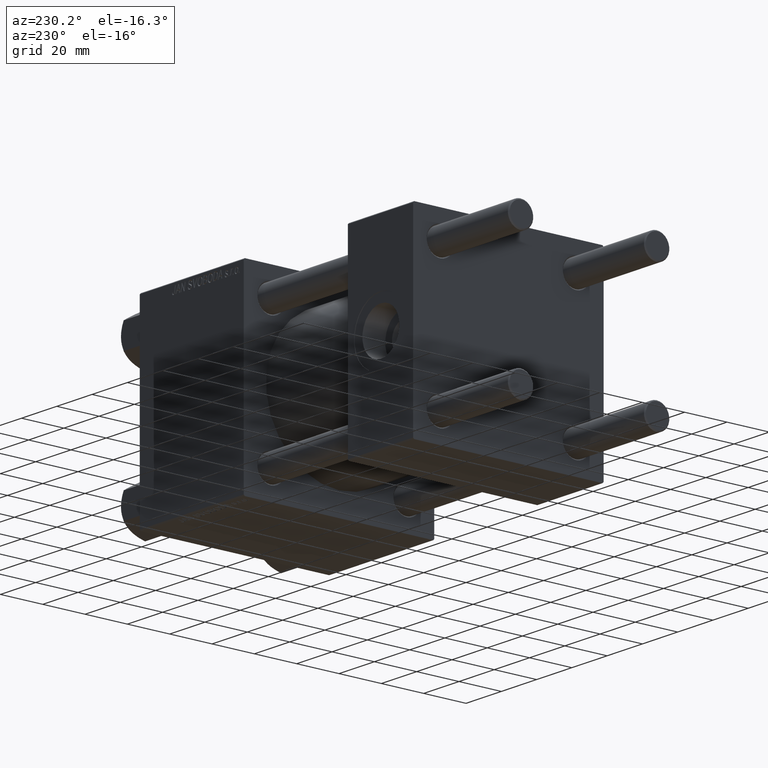
[diagram: clean part render]
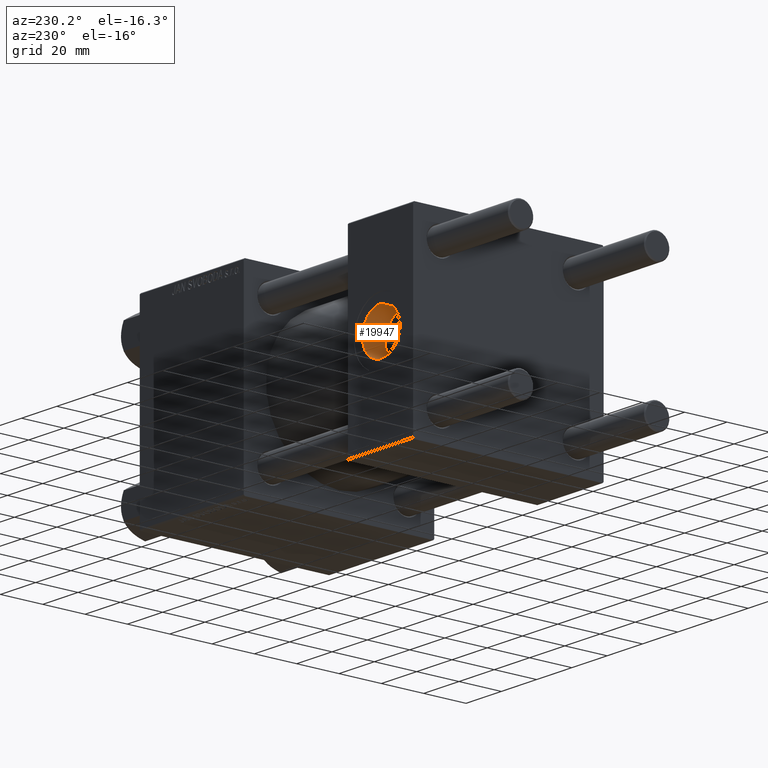
[diagram: same view with one face highlighted and labeled with its STEP entity id]
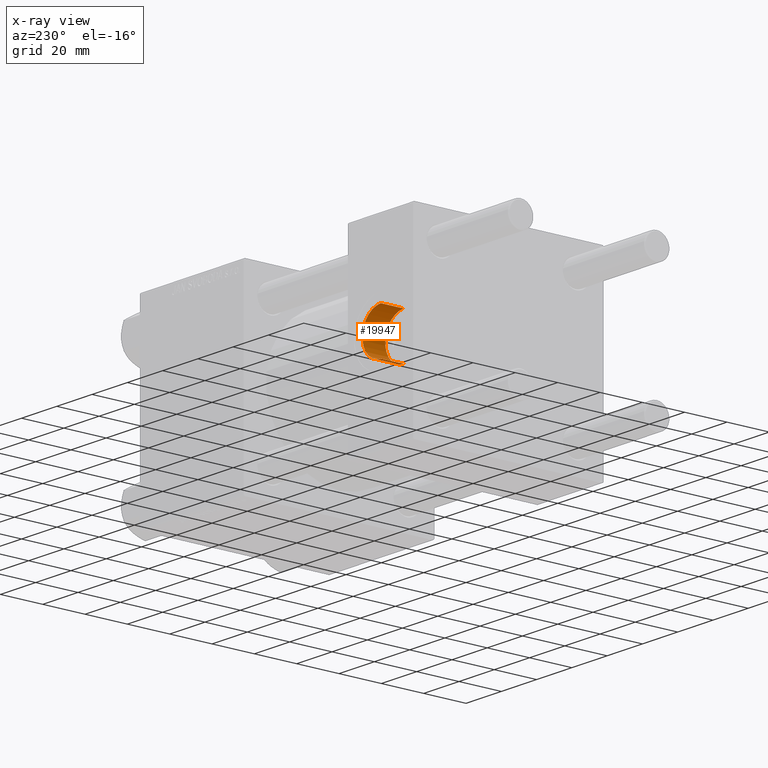
[diagram: x-ray of the same camera — body ghosted, the highlighted face saturated]
A machine part, auxiliary view. The second image highlights one B-rep face of the part: STEP entity #19947.
The next image is the same camera in x-ray: the body ghosted, the highlighted face saturated — about 0% of this face is hidden behind the body in this view.
In plain terms, the highlighted cylindrical surface (edge-blend (fillet) strip) has radius 10.48 mm, axis along (0, 1, 0).
Its self-contained STEP definition (entity closure, byte-faithful):
#34 = CARTESIAN_POINT ( 'NONE',  ( 18.50000000000000000, 33.99999999999998579, -10.48000000000000043 ) ) ;
#351 = EDGE_CURVE ( 'NONE', #12161, #13043, #29726, .T. ) ;
#383 = EDGE_CURVE ( 'NONE', #25986, #13043, #46134, .T. ) ;
#2998 = DIRECTION ( 'NONE',  ( 0.000000000000000000, 0.000000000000000000, 1.000000000000000000 ) ) ;
#3138 = CARTESIAN_POINT ( 'NONE',  ( 18.50000000000000000, 44.79999999999998295, -10.48000000000000043 ) ) ;
#5111 = VERTEX_POINT ( 'NONE', #10098 ) ;
#6171 = DIRECTION ( 'NONE',  ( 0.000000000000000000, 1.000000000000000000, 0.000000000000000000 ) ) ;
#8223 = CARTESIAN_POINT ( 'NONE',  ( 18.50000000000000000, 33.99999999999998579, 0.000000000000000000 ) ) ;
#10098 = CARTESIAN_POINT ( 'NONE',  ( 18.50000000000000000, 33.99999999999998579, 10.48000000000000043 ) ) ;
#11578 = AXIS2_PLACEMENT_3D ( 'NONE', #8223, #46030, #16016 ) ;
#12161 = VERTEX_POINT ( 'NONE', #33759 ) ;
#12330 = AXIS2_PLACEMENT_3D ( 'NONE', #29203, #37315, #2998 ) ;
#13043 = VERTEX_POINT ( 'NONE', #3138 ) ;
#16016 = DIRECTION ( 'NONE',  ( 0.000000000000000000, 0.000000000000000000, 1.000000000000000000 ) ) ;
#16832 = AXIS2_PLACEMENT_3D ( 'NONE', #19177, #6171, #26763 ) ;
#19177 = CARTESIAN_POINT ( 'NONE',  ( 18.50000000000000000, 44.79999999999998295, 0.000000000000000000 ) ) ;
#19315 = CYLINDRICAL_SURFACE ( 'NONE', #11578, 10.48000000000000043 ) ;
#19319 = EDGE_CURVE ( 'NONE', #5111, #25986, #30880, .T. ) ;
#19947 = ADVANCED_FACE ( 'NONE', ( #42767 ), #19315, .F. ) ;
#20582 = ORIENTED_EDGE ( 'NONE', *, *, #21934, .T. ) ;
#20904 = VECTOR ( 'NONE', #49401, 1000.000000000000000 ) ;
#21860 = LINE ( 'NONE', #44782, #30948 ) ;
#21934 = EDGE_CURVE ( 'NONE', #5111, #12161, #21860, .T. ) ;
#24559 = ORIENTED_EDGE ( 'NONE', *, *, #383, .F. ) ;
#24726 = ORIENTED_EDGE ( 'NONE', *, *, #351, .T. ) ;
#25986 = VERTEX_POINT ( 'NONE', #29818 ) ;
#26763 = DIRECTION ( 'NONE',  ( 0.000000000000000000, 0.000000000000000000, 1.000000000000000000 ) ) ;
#29203 = CARTESIAN_POINT ( 'NONE',  ( 18.50000000000000000, 33.99999999999998579, 0.000000000000000000 ) ) ;
#29726 = CIRCLE ( 'NONE', #16832, 10.48000000000000043 ) ;
#29818 = CARTESIAN_POINT ( 'NONE',  ( 18.50000000000000000, 33.99999999999998579, -10.48000000000000043 ) ) ;
#30880 = CIRCLE ( 'NONE', #12330, 10.48000000000000043 ) ;
#30948 = VECTOR ( 'NONE', #40250, 1000.000000000000000 ) ;
#33759 = CARTESIAN_POINT ( 'NONE',  ( 18.50000000000000000, 44.79999999999998295, 10.48000000000000043 ) ) ;
#37315 = DIRECTION ( 'NONE',  ( 0.000000000000000000, 1.000000000000000000, 0.000000000000000000 ) ) ;
#37705 = ORIENTED_EDGE ( 'NONE', *, *, #19319, .F. ) ;
#40250 = DIRECTION ( 'NONE',  ( -0.000000000000000000, 1.000000000000000000, -0.000000000000000000 ) ) ;
#40738 = EDGE_LOOP ( 'NONE', ( #24559, #37705, #20582, #24726 ) ) ;
#42767 = FACE_OUTER_BOUND ( 'NONE', #40738, .T. ) ;
#44782 = CARTESIAN_POINT ( 'NONE',  ( 18.50000000000000000, 33.99999999999998579, 10.48000000000000043 ) ) ;
#46030 = DIRECTION ( 'NONE',  ( -0.000000000000000000, 1.000000000000000000, -0.000000000000000000 ) ) ;
#46134 = LINE ( 'NONE', #34, #20904 ) ;
#49401 = DIRECTION ( 'NONE',  ( -0.000000000000000000, 1.000000000000000000, -0.000000000000000000 ) ) ;